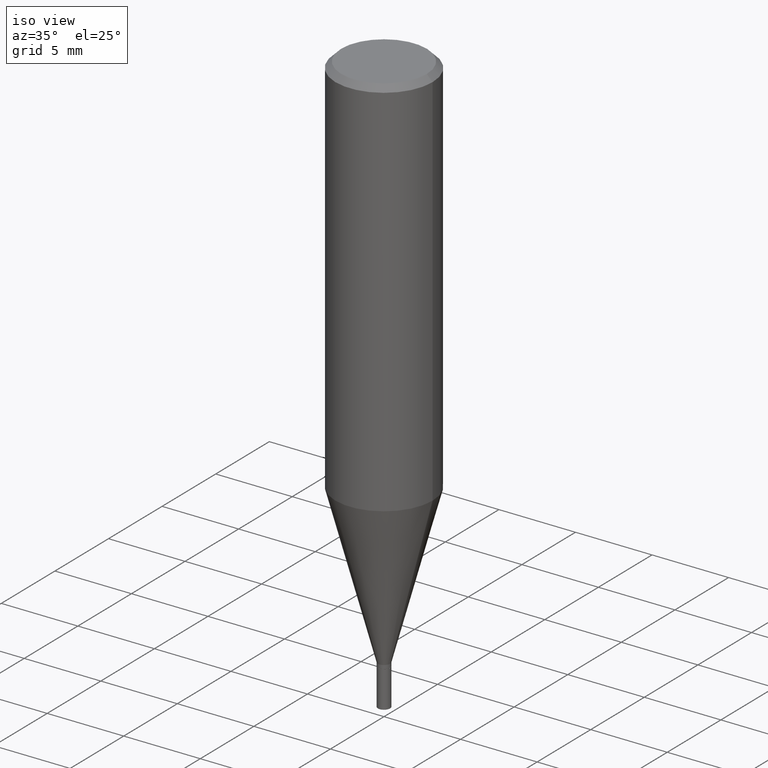
[diagram: clean part render]
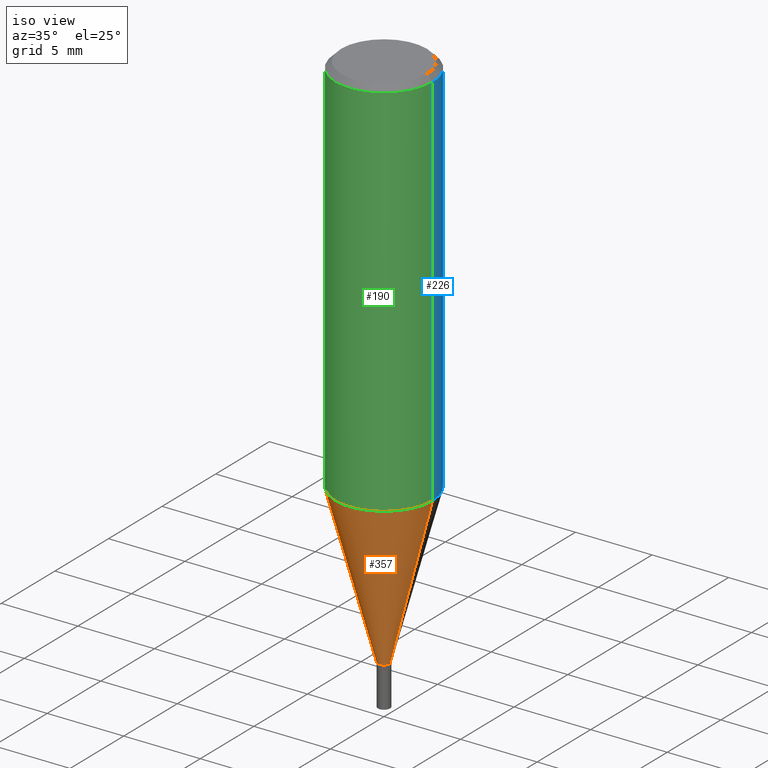
[diagram: same view with three faces highlighted in distinct colors, each labeled with its STEP entity id]
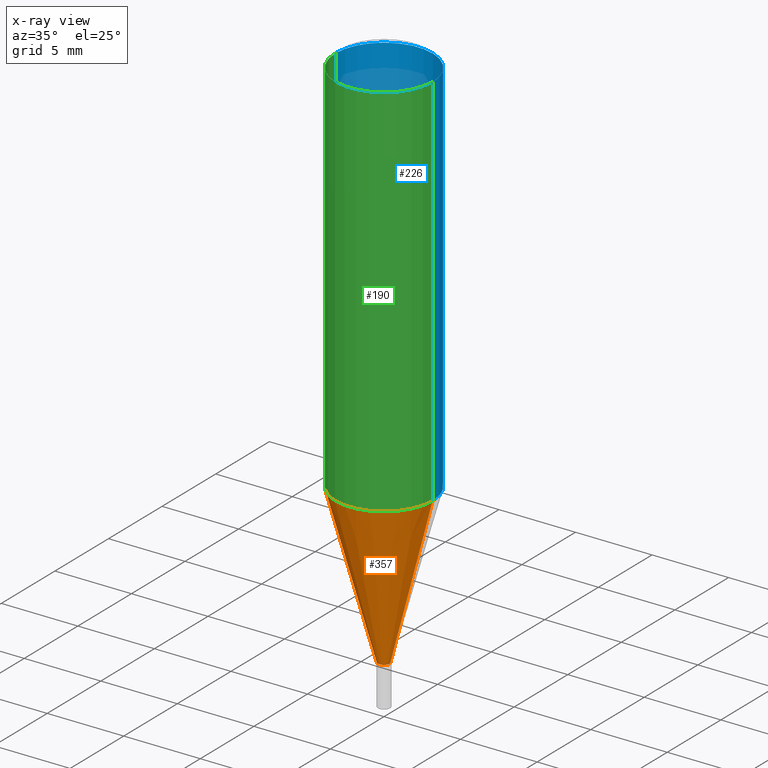
[diagram: x-ray of the same camera — body ghosted, the three highlighted faces saturated]
A machine part, iso view with three faces highlighted in distinct colors.
The next image is the same camera in x-ray (body ghosted, the three faces saturated) — at least one of them is partly hidden behind the body in this view.
Their STEP definitions:

[orange] entity #357 — the highlighted conical surface has half-angle 15 deg.
#13 = VECTOR ( 'NONE', #144, 39.37007874015747433 ) ;
#17 = EDGE_LOOP ( 'NONE', ( #223, #84, #396, #133 ) ) ;
#21 = DIRECTION ( 'NONE',  ( 0.2588190451025213501, 1.565188264969621968E-15, 0.9659258262890682012 ) ) ;
#26 = VERTEX_POINT ( 'NONE', #317 ) ;
#37 = EDGE_CURVE ( 'NONE', #320, #235, #184, .T. ) ;
#49 = CIRCLE ( 'NONE', #299, 0.1250000000000000000 ) ;
#50 = CARTESIAN_POINT ( 'NONE',  ( 3.413874453434450954E-29, -4.874107949025031235E-15, -1.396000000000000130 ) ) ;
#51 = CARTESIAN_POINT ( 'NONE',  ( 3.413874453434450954E-29, -4.874107949025031235E-15, -1.396000000000000130 ) ) ;
#52 = CARTESIAN_POINT ( 'NONE',  ( 2.415422900103406254E-29, -3.448583747948643968E-15, -0.9877136416519656237 ) ) ;
#84 = ORIENTED_EDGE ( 'NONE', *, *, #37, .T. ) ;
#96 = DIRECTION ( 'NONE',  ( 1.000000000000000000, -6.982962677686266711E-15, 0.000000000000000000 ) ) ;
#109 = CONICAL_SURFACE ( 'NONE', #197, 0.01559999999999991775, 0.2617993877991500740 ) ;
#124 = VERTEX_POINT ( 'NONE', #422 ) ;
#133 = ORIENTED_EDGE ( 'NONE', *, *, #141, .F. ) ;
#141 = EDGE_CURVE ( 'NONE', #124, #26, #49, .T. ) ;
#144 = DIRECTION ( 'NONE',  ( -0.2588190451025213501, 5.211531920934551042E-15, 0.9659258262890682012 ) ) ;
#163 = DIRECTION ( 'NONE',  ( 1.000000000000000000, -6.982962677686257244E-15, 0.000000000000000000 ) ) ;
#184 = CIRCLE ( 'NONE', #444, 0.01559999999999991775 ) ;
#197 = AXIS2_PLACEMENT_3D ( 'NONE', #51, #356, #163 ) ;
#217 = CARTESIAN_POINT ( 'NONE',  ( -0.01559999999999991775, -4.763263282246455981E-15, -1.396000000000000130 ) ) ;
#222 = EDGE_CURVE ( 'NONE', #320, #124, #430, .T. ) ;
#223 = ORIENTED_EDGE ( 'NONE', *, *, #222, .F. ) ;
#235 = VERTEX_POINT ( 'NONE', #253 ) ;
#241 = LINE ( 'NONE', #353, #283 ) ;
#253 = CARTESIAN_POINT ( 'NONE',  ( 0.01559999999999991775, -4.983042166796936213E-15, -1.396000000000000130 ) ) ;
#270 = CARTESIAN_POINT ( 'NONE',  ( -0.01559999999999991775, -3.661834305247487555E-15, -1.396000000000000130 ) ) ;
#283 = VECTOR ( 'NONE', #21, 39.37007874015747433 ) ;
#287 = DIRECTION ( 'NONE',  ( -2.445468806185136597E-29, 3.491481338843145583E-15, 1.000000000000000000 ) ) ;
#299 = AXIS2_PLACEMENT_3D ( 'NONE', #52, #287, #96 ) ;
#314 = DIRECTION ( 'NONE',  ( 1.000000000000000000, -6.982962677686257244E-15, 0.000000000000000000 ) ) ;
#317 = CARTESIAN_POINT ( 'NONE',  ( 0.1249999999999999861, -4.321454082659426912E-15, -0.9877136416519656237 ) ) ;
#320 = VERTEX_POINT ( 'NONE', #270 ) ;
#353 = CARTESIAN_POINT ( 'NONE',  ( 0.01559999999999991775, -4.983042166796936213E-15, -1.396000000000000130 ) ) ;
#356 = DIRECTION ( 'NONE',  ( -2.445468806185136597E-29, 3.491481338843145583E-15, 1.000000000000000000 ) ) ;
#357 = ADVANCED_FACE ( 'NONE', ( #359 ), #109, .T. ) ;
#359 = FACE_OUTER_BOUND ( 'NONE', #17, .T. ) ;
#384 = DIRECTION ( 'NONE',  ( -2.445468806185136597E-29, 3.491481338843145583E-15, 1.000000000000000000 ) ) ;
#396 = ORIENTED_EDGE ( 'NONE', *, *, #465, .T. ) ;
#422 = CARTESIAN_POINT ( 'NONE',  ( -0.1249999999999999861, -2.560405328248518341E-15, -0.9877136416519656237 ) ) ;
#430 = LINE ( 'NONE', #217, #13 ) ;
#444 = AXIS2_PLACEMENT_3D ( 'NONE', #50, #384, #314 ) ;
#465 = EDGE_CURVE ( 'NONE', #235, #26, #241, .T. ) ;

[blue] entity #226 — the highlighted cylindrical surface (partial cylindrical patch) has radius 3.175 mm, axis along (-0, 0, 1).
#8 = EDGE_LOOP ( 'NONE', ( #302, #44, #381, #288 ) ) ;
#26 = VERTEX_POINT ( 'NONE', #317 ) ;
#27 = CARTESIAN_POINT ( 'NONE',  ( 3.668203209277705088E-31, -5.237222008264718399E-17, -0.01499999999999999944 ) ) ;
#44 = ORIENTED_EDGE ( 'NONE', *, *, #67, .T. ) ;
#62 = CARTESIAN_POINT ( 'NONE',  ( 0.000000000000000000, 0.000000000000000000, 0.000000000000000000 ) ) ;
#67 = EDGE_CURVE ( 'NONE', #124, #310, #126, .T. ) ;
#83 = DIRECTION ( 'NONE',  ( 1.000000000000000000, -6.982962677686266711E-15, 0.000000000000000000 ) ) ;
#106 = DIRECTION ( 'NONE',  ( -2.445468806185136597E-29, 3.491481338843145583E-15, 1.000000000000000000 ) ) ;
#112 = CIRCLE ( 'NONE', #345, 0.1250000000000000000 ) ;
#124 = VERTEX_POINT ( 'NONE', #422 ) ;
#126 = LINE ( 'NONE', #455, #219 ) ;
#137 = DIRECTION ( 'NONE',  ( -2.445468806185136597E-29, 3.491481338843145583E-15, 1.000000000000000000 ) ) ;
#149 = EDGE_CURVE ( 'NONE', #26, #124, #112, .T. ) ;
#155 = DIRECTION ( 'NONE',  ( -2.445468806185136877E-29, 3.491481338843145188E-15, 1.000000000000000000 ) ) ;
#171 = DIRECTION ( 'NONE',  ( -2.445468806185136877E-29, 3.491481338843145188E-15, 1.000000000000000000 ) ) ;
#178 = VECTOR ( 'NONE', #171, 39.37007874015748143 ) ;
#182 = CARTESIAN_POINT ( 'NONE',  ( 0.1250000000000000000, -9.252425547934304180E-16, -0.01499999999999999944 ) ) ;
#200 = DIRECTION ( 'NONE',  ( -2.445468806185136597E-29, 3.491481338843145583E-15, 1.000000000000000000 ) ) ;
#207 = VERTEX_POINT ( 'NONE', #182 ) ;
#219 = VECTOR ( 'NONE', #155, 39.37007874015748143 ) ;
#226 = ADVANCED_FACE ( 'NONE', ( #260 ), #300, .T. ) ;
#257 = CARTESIAN_POINT ( 'NONE',  ( 0.1250000000000000000, -8.728703347107833388E-16, 6.095220969744919741E-30 ) ) ;
#260 = FACE_OUTER_BOUND ( 'NONE', #8, .T. ) ;
#263 = EDGE_CURVE ( 'NONE', #26, #207, #403, .T. ) ;
#281 = AXIS2_PLACEMENT_3D ( 'NONE', #62, #106, #298 ) ;
#284 = DIRECTION ( 'NONE',  ( 1.000000000000000000, -6.982962677686266711E-15, 0.000000000000000000 ) ) ;
#288 = ORIENTED_EDGE ( 'NONE', *, *, #263, .F. ) ;
#298 = DIRECTION ( 'NONE',  ( 1.000000000000000000, -6.982962677686266711E-15, 4.876176775795935793E-29 ) ) ;
#300 = CYLINDRICAL_SURFACE ( 'NONE', #281, 0.1250000000000000000 ) ;
#302 = ORIENTED_EDGE ( 'NONE', *, *, #149, .T. ) ;
#310 = VERTEX_POINT ( 'NONE', #435 ) ;
#317 = CARTESIAN_POINT ( 'NONE',  ( 0.1249999999999999861, -4.321454082659426912E-15, -0.9877136416519656237 ) ) ;
#318 = CIRCLE ( 'NONE', #412, 0.1250000000000000000 ) ;
#323 = EDGE_CURVE ( 'NONE', #207, #310, #318, .T. ) ;
#345 = AXIS2_PLACEMENT_3D ( 'NONE', #415, #200, #83 ) ;
#381 = ORIENTED_EDGE ( 'NONE', *, *, #323, .F. ) ;
#403 = LINE ( 'NONE', #257, #178 ) ;
#412 = AXIS2_PLACEMENT_3D ( 'NONE', #27, #137, #284 ) ;
#415 = CARTESIAN_POINT ( 'NONE',  ( 2.415422900103406254E-29, -3.448583747948643968E-15, -0.9877136416519656237 ) ) ;
#422 = CARTESIAN_POINT ( 'NONE',  ( -0.1249999999999999861, -2.560405328248518341E-15, -0.9877136416519656237 ) ) ;
#435 = CARTESIAN_POINT ( 'NONE',  ( -0.1250000000000000000, -8.622995643155203899E-16, -0.01499999999999999944 ) ) ;
#455 = CARTESIAN_POINT ( 'NONE',  ( -0.1250000000000000000, 8.881784197001252323E-16, -6.148668862818632227E-30 ) ) ;

[green] entity #190 — the highlighted cylindrical surface (partial cylindrical patch) has radius 3.175 mm, axis along (-0, 0, 1).
#23 = ORIENTED_EDGE ( 'NONE', *, *, #67, .F. ) ;
#26 = VERTEX_POINT ( 'NONE', #317 ) ;
#49 = CIRCLE ( 'NONE', #299, 0.1250000000000000000 ) ;
#52 = CARTESIAN_POINT ( 'NONE',  ( 2.415422900103406254E-29, -3.448583747948643968E-15, -0.9877136416519656237 ) ) ;
#67 = EDGE_CURVE ( 'NONE', #124, #310, #126, .T. ) ;
#96 = DIRECTION ( 'NONE',  ( 1.000000000000000000, -6.982962677686266711E-15, 0.000000000000000000 ) ) ;
#100 = FACE_OUTER_BOUND ( 'NONE', #116, .T. ) ;
#116 = EDGE_LOOP ( 'NONE', ( #23, #413, #355, #424 ) ) ;
#124 = VERTEX_POINT ( 'NONE', #422 ) ;
#126 = LINE ( 'NONE', #455, #219 ) ;
#141 = EDGE_CURVE ( 'NONE', #124, #26, #49, .T. ) ;
#143 = CARTESIAN_POINT ( 'NONE',  ( 0.000000000000000000, 0.000000000000000000, 0.000000000000000000 ) ) ;
#146 = DIRECTION ( 'NONE',  ( -2.445468806185136597E-29, 3.491481338843145583E-15, 1.000000000000000000 ) ) ;
#155 = DIRECTION ( 'NONE',  ( -2.445468806185136877E-29, 3.491481338843145188E-15, 1.000000000000000000 ) ) ;
#158 = DIRECTION ( 'NONE',  ( -2.445468806185136597E-29, 3.491481338843145583E-15, 1.000000000000000000 ) ) ;
#166 = EDGE_CURVE ( 'NONE', #310, #207, #453, .T. ) ;
#171 = DIRECTION ( 'NONE',  ( -2.445468806185136877E-29, 3.491481338843145188E-15, 1.000000000000000000 ) ) ;
#178 = VECTOR ( 'NONE', #171, 39.37007874015748143 ) ;
#182 = CARTESIAN_POINT ( 'NONE',  ( 0.1250000000000000000, -9.252425547934304180E-16, -0.01499999999999999944 ) ) ;
#190 = ADVANCED_FACE ( 'NONE', ( #100 ), #440, .T. ) ;
#207 = VERTEX_POINT ( 'NONE', #182 ) ;
#219 = VECTOR ( 'NONE', #155, 39.37007874015748143 ) ;
#257 = CARTESIAN_POINT ( 'NONE',  ( 0.1250000000000000000, -8.728703347107833388E-16, 6.095220969744919741E-30 ) ) ;
#263 = EDGE_CURVE ( 'NONE', #26, #207, #403, .T. ) ;
#277 = DIRECTION ( 'NONE',  ( 1.000000000000000000, -6.982962677686266711E-15, 0.000000000000000000 ) ) ;
#287 = DIRECTION ( 'NONE',  ( -2.445468806185136597E-29, 3.491481338843145583E-15, 1.000000000000000000 ) ) ;
#299 = AXIS2_PLACEMENT_3D ( 'NONE', #52, #287, #96 ) ;
#310 = VERTEX_POINT ( 'NONE', #435 ) ;
#317 = CARTESIAN_POINT ( 'NONE',  ( 0.1249999999999999861, -4.321454082659426912E-15, -0.9877136416519656237 ) ) ;
#327 = DIRECTION ( 'NONE',  ( 1.000000000000000000, -6.982962677686266711E-15, 4.876176775795935793E-29 ) ) ;
#337 = AXIS2_PLACEMENT_3D ( 'NONE', #143, #146, #327 ) ;
#344 = CARTESIAN_POINT ( 'NONE',  ( 3.668203209277705088E-31, -5.237222008264718399E-17, -0.01499999999999999944 ) ) ;
#355 = ORIENTED_EDGE ( 'NONE', *, *, #263, .T. ) ;
#403 = LINE ( 'NONE', #257, #178 ) ;
#410 = AXIS2_PLACEMENT_3D ( 'NONE', #344, #158, #277 ) ;
#413 = ORIENTED_EDGE ( 'NONE', *, *, #141, .T. ) ;
#422 = CARTESIAN_POINT ( 'NONE',  ( -0.1249999999999999861, -2.560405328248518341E-15, -0.9877136416519656237 ) ) ;
#424 = ORIENTED_EDGE ( 'NONE', *, *, #166, .F. ) ;
#435 = CARTESIAN_POINT ( 'NONE',  ( -0.1250000000000000000, -8.622995643155203899E-16, -0.01499999999999999944 ) ) ;
#440 = CYLINDRICAL_SURFACE ( 'NONE', #337, 0.1250000000000000000 ) ;
#453 = CIRCLE ( 'NONE', #410, 0.1250000000000000000 ) ;
#455 = CARTESIAN_POINT ( 'NONE',  ( -0.1250000000000000000, 8.881784197001252323E-16, -6.148668862818632227E-30 ) ) ;